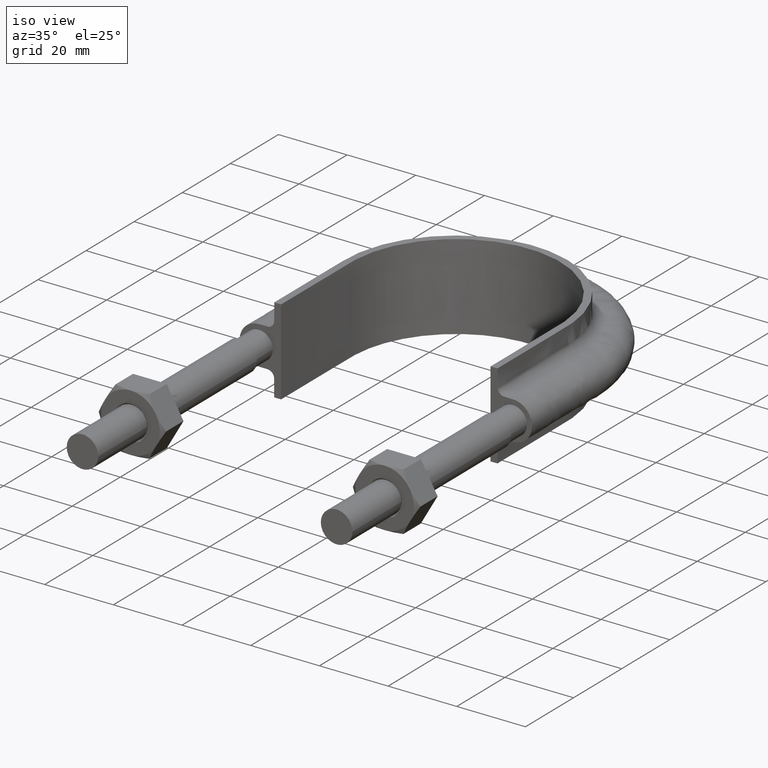
[diagram: clean part render]
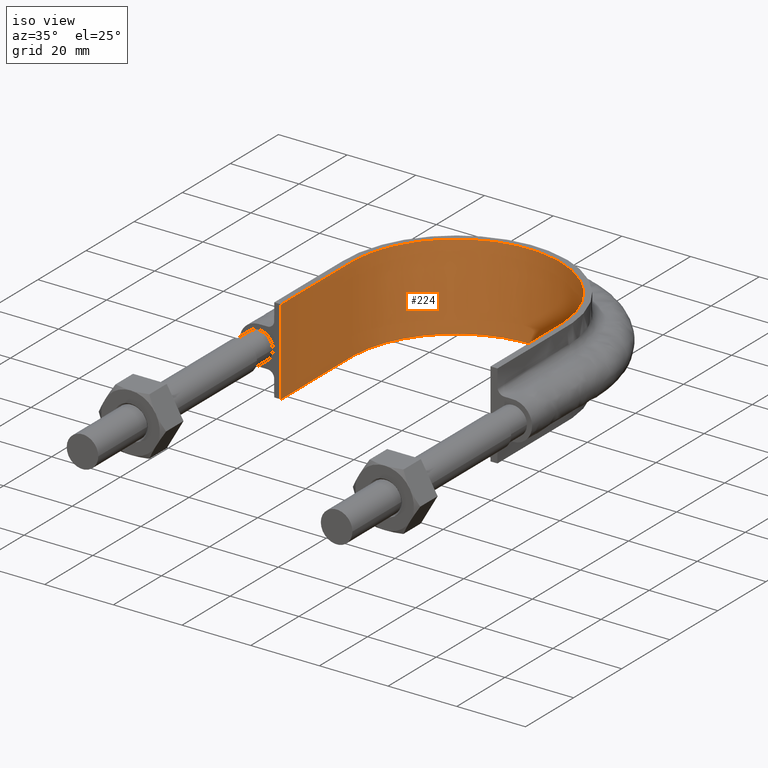
[diagram: same view with one face highlighted and labeled with its STEP entity id]
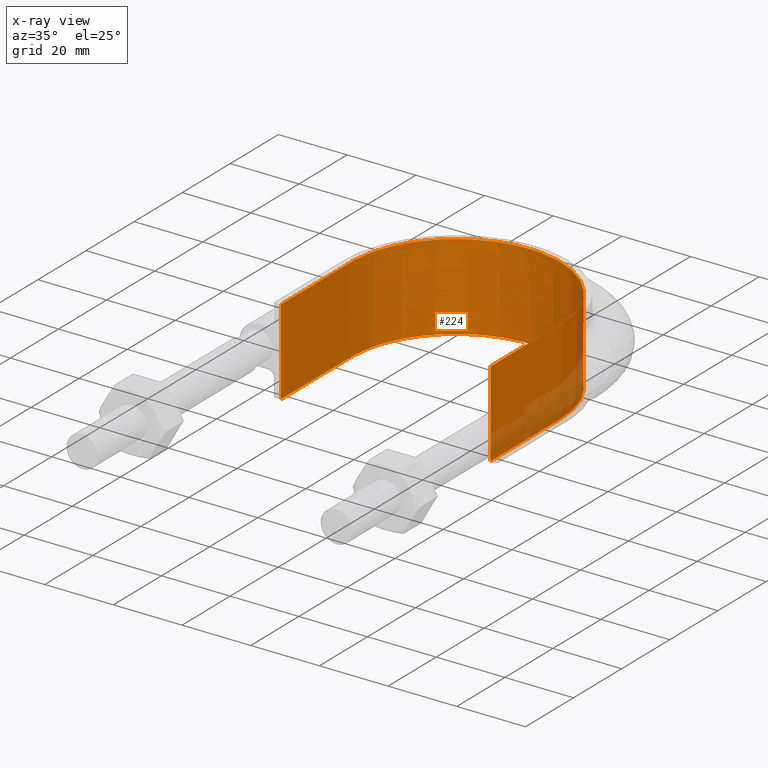
[diagram: x-ray of the same camera — body ghosted, the highlighted face saturated]
A machine part, iso view. The second image highlights one B-rep face of the part: STEP entity #224.
The next image is the same camera in x-ray: the body ghosted, the highlighted face saturated — about 8% of this face is hidden behind the body in this view.
In plain terms, the highlighted face is a SurfaceOfExtrusion surface.
Its self-contained STEP definition (entity closure, byte-faithful):
#224 = ADVANCED_FACE( '', ( #308 ), #309, .T. );
#308 = FACE_OUTER_BOUND( '', #1006, .T. );
#309 = SURFACE_OF_LINEAR_EXTRUSION( '', #1007, #1008 );
#1006 = EDGE_LOOP( '', ( #1499, #1500, #1501, #1502 ) );
#1007 = B_SPLINE_CURVE_WITH_KNOTS( '', 3, ( #1503, #1504, #1505, #1506, #1507, #1508, #1509, #1510, #1511, #1512, #1513, #1514, #1515, #1516, #1517, #1518, #1519 ), .UNSPECIFIED., .F., .F., ( 4, 3, 1, 1, 1, 1, 1, 1, 1, 3, 4 ), ( -7.88217522658610, -7.00000000000000, -6.50000000000000, -6.00000000000000, -5.00000000000000, -4.00000000000000, -3.00000000000000, -2.00000000000000, -1.50000000000000, -1.00000000000000, -0.117824773413899 ), .UNSPECIFIED. );
#1008 = VECTOR( '', #1520, 1000.00000000000 );
#1499 = ORIENTED_EDGE( '', *, *, #2011, .T. );
#1500 = ORIENTED_EDGE( '', *, *, #2004, .F. );
#1501 = ORIENTED_EDGE( '', *, *, #2016, .F. );
#1502 = ORIENTED_EDGE( '', *, *, #2013, .T. );
#1503 = CARTESIAN_POINT( '', ( 30.5000000000000, 73.3000000000001, 12.5000100000910 ) );
#1504 = CARTESIAN_POINT( '', ( 30.5000000000000, 83.0333333333334, 12.5000100000910 ) );
#1505 = CARTESIAN_POINT( '', ( 30.5000000000000, 92.7666666666667, 12.5000100000910 ) );
#1506 = CARTESIAN_POINT( '', ( 30.5000000000001, 102.500000000000, 12.5000100000910 ) );
#1507 = CARTESIAN_POINT( '', ( 30.5000000000001, 105.146909574859, 12.5000100000910 ) );
#1508 = CARTESIAN_POINT( '', ( 29.7847488998591, 110.486937441059, 12.5000100000910 ) );
#1509 = CARTESIAN_POINT( '', ( 25.7022707691493, 120.407294151929, 12.5000100000910 ) );
#1510 = CARTESIAN_POINT( '', ( 15.9624408097424, 130.149665427345, 12.5000100000910 ) );
#1511 = CARTESIAN_POINT( '', ( 2.68701322531081E-014, 134.425167286328, 12.5000100000910 ) );
#1512 = CARTESIAN_POINT( '', ( -15.9624408097423, 130.149665427345, 12.5000100000910 ) );
#1513 = CARTESIAN_POINT( '', ( -25.7022707691492, 120.407294151929, 12.5000100000910 ) );
#1514 = CARTESIAN_POINT( '', ( -29.7847488998590, 110.486937441059, 12.5000100000910 ) );
#1515 = CARTESIAN_POINT( '', ( -30.5000000000000, 105.146909574859, 12.5000100000910 ) );
#1516 = CARTESIAN_POINT( '', ( -30.5000000000000, 102.500000000000, 12.5000100000910 ) );
#1517 = CARTESIAN_POINT( '', ( -30.5000000000000, 92.7666666666667, 12.5000100000910 ) );
#1518 = CARTESIAN_POINT( '', ( -30.5000000000000, 83.0333333333334, 12.5000100000910 ) );
#1519 = CARTESIAN_POINT( '', ( -30.5000000000000, 73.3000000000001, 12.5000100000910 ) );
#1520 = DIRECTION( '', ( 0.000000000000000, 0.000000000000000, -1.00000000000000 ) );
#2004 = EDGE_CURVE( '', #2155, #2158, #2159, .T. );
#2011 = EDGE_CURVE( '', #2170, #2158, #2171, .F. );
#2013 = EDGE_CURVE( '', #2173, #2170, #2174, .T. );
#2016 = EDGE_CURVE( '', #2173, #2155, #2178, .T. );
#2155 = VERTEX_POINT( '', #2405 );
#2158 = VERTEX_POINT( '', #2409 );
#2159 = LINE( '', #2410, #2411 );
#2170 = VERTEX_POINT( '', #2524 );
#2171 = B_SPLINE_CURVE_WITH_KNOTS( '', 3, ( #2525, #2526, #2527, #2528, #2529, #2530, #2531, #2532, #2533, #2534, #2535, #2536, #2537, #2538, #2539, #2540, #2541 ), .UNSPECIFIED., .F., .F., ( 4, 3, 1, 1, 1, 1, 1, 1, 1, 3, 4 ), ( -7.88217522658610, -7.00000000000000, -6.50000000000000, -6.00000000000000, -5.00000000000000, -4.00000000000000, -3.00000000000000, -2.00000000000000, -1.50000000000000, -1.00000000000000, -0.117824773413899 ), .UNSPECIFIED. );
#2173 = VERTEX_POINT( '', #2544 );
#2174 = LINE( '', #2545, #2546 );
#2178 = B_SPLINE_CURVE_WITH_KNOTS( '', 3, ( #2560, #2561, #2562, #2563, #2564, #2565, #2566, #2567, #2568, #2569, #2570, #2571, #2572, #2573, #2574, #2575, #2576, #2577, #2578, #2579, #2580, #2581, #2582, #2583, #2584, #2585, #2586, #2587, #2588, #2589, #2590, #2591, #2592, #2593, #2594, #2595, #2596, #2597, #2598, #2599, #2600, #2601, #2602, #2603, #2604, #2605, #2606, #2607, #2608, #2609, #2610, #2611, #2612, #2613, #2614, #2615, #2616, #2617, #2618, #2619, #2620, #2621, #2622, #2623, #2624, #2625, #2626, #2627, #2628, #2629, #2630, #2631, #2632, #2633 ), .UNSPECIFIED., .F., .F., ( 4, 1, 2, 2, 2, 2, 2, 2, 2, 2, 2, 2, 2, 2, 2, 2, 2, 2, 2, 2, 2, 2, 2, 2, 2, 2, 2, 2, 2, 2, 2, 2, 2, 2, 2, 2, 1, 4 ), ( 0.000000000000000, 0.0192554222640497, 0.0288831333960746, 0.0300865972875777, 0.0312900611790808, 0.0336969889620870, 0.0385108445280995, 0.0433247000941120, 0.0445281639856152, 0.0457316278771183, 0.0481385556601245, 0.0529524112261371, 0.0553593390091433, 0.0577662667921496, 0.0625801223581622, 0.0649870501411685, 0.0673939779241748, 0.0722078334901873, 0.0746147612731936, 0.0770216890561999, 0.0818355446222125, 0.0842424724052188, 0.0866494001882251, 0.0914632557542377, 0.0938701835372440, 0.0962771113202503, 0.101090966886263, 0.103497894669269, 0.105904822452275, 0.110718678018288, 0.115532533584301, 0.117939461367307, 0.120346389150313, 0.122753316933320, 0.123956780824823, 0.125160244716326, 0.134787955848351, 0.154043378112401 ), .UNSPECIFIED. );
#2405 = CARTESIAN_POINT( '', ( 30.5000000000000, 73.3000000000001, 12.5000000000000 ) );
#2409 = CARTESIAN_POINT( '', ( 30.5000000000000, 73.3000000000001, -12.5000000000000 ) );
#2410 = CARTESIAN_POINT( '', ( 30.5000000000000, 73.3000000000001, 12.5000100000910 ) );
#2411 = VECTOR( '', #3059, 1000.00000000000 );
#2524 = CARTESIAN_POINT( '', ( -30.5000000000000, 73.3000000000001, -12.5000000000000 ) );
#2525 = CARTESIAN_POINT( '', ( 30.5000000000000, 73.3000000000001, -12.5000000000000 ) );
#2526 = CARTESIAN_POINT( '', ( 30.5000000000000, 83.0333333333334, -12.5000000000000 ) );
#2527 = CARTESIAN_POINT( '', ( 30.5000000000000, 92.7666666666667, -12.5000000000000 ) );
#2528 = CARTESIAN_POINT( '', ( 30.5000000000001, 102.500000000000, -12.5000000000000 ) );
#2529 = CARTESIAN_POINT( '', ( 30.5000000000001, 105.146909574859, -12.5000000000000 ) );
#2530 = CARTESIAN_POINT( '', ( 29.7847488998591, 110.486937441059, -12.5000000000000 ) );
#2531 = CARTESIAN_POINT( '', ( 25.7022707691493, 120.407294151929, -12.5000000000000 ) );
#2532 = CARTESIAN_POINT( '', ( 15.9624408097424, 130.149665427345, -12.5000000000000 ) );
#2533 = CARTESIAN_POINT( '', ( 2.68701322531081E-014, 134.425167286328, -12.5000000000000 ) );
#2534 = CARTESIAN_POINT( '', ( -15.9624408097423, 130.149665427345, -12.5000000000000 ) );
#2535 = CARTESIAN_POINT( '', ( -25.7022707691492, 120.407294151929, -12.5000000000000 ) );
#2536 = CARTESIAN_POINT( '', ( -29.7847488998590, 110.486937441059, -12.5000000000000 ) );
#2537 = CARTESIAN_POINT( '', ( -30.5000000000000, 105.146909574859, -12.5000000000000 ) );
#2538 = CARTESIAN_POINT( '', ( -30.5000000000000, 102.500000000000, -12.5000000000000 ) );
#2539 = CARTESIAN_POINT( '', ( -30.5000000000000, 92.7666666666667, -12.5000000000000 ) );
#2540 = CARTESIAN_POINT( '', ( -30.5000000000000, 83.0333333333334, -12.5000000000000 ) );
#2541 = CARTESIAN_POINT( '', ( -30.5000000000000, 73.3000000000001, -12.5000000000000 ) );
#2544 = CARTESIAN_POINT( '', ( -30.5000000000000, 73.3000000000001, 12.5000000000000 ) );
#2545 = CARTESIAN_POINT( '', ( -30.5000000000000, 73.3000000000001, 12.5000100000910 ) );
#2546 = VECTOR( '', #3062, 1000.00000000000 );
#2560 = CARTESIAN_POINT( '', ( -30.5000000000000, 73.3000000000001, 12.5000000000000 ) );
#2561 = CARTESIAN_POINT( '', ( -30.5000000000000, 79.7187970838913, 12.5000000000000 ) );
#2562 = CARTESIAN_POINT( '', ( -30.5000000000000, 89.3469927097281, 12.5000000000000 ) );
#2563 = CARTESIAN_POINT( '', ( -30.5000000000000, 98.9751883355649, 12.5000000000000 ) );
#2564 = CARTESIAN_POINT( '', ( -30.5000000000000, 102.585761695254, 12.5000000000000 ) );
#2565 = CARTESIAN_POINT( '', ( -30.4986844541323, 102.986923314969, 12.5000000000000 ) );
#2566 = CARTESIAN_POINT( '', ( -30.4745981741132, 103.789031308254, 12.5000000000000 ) );
#2567 = CARTESIAN_POINT( '', ( -30.4544492509141, 104.190003984771, 12.5000000000000 ) );
#2568 = CARTESIAN_POINT( '', ( -30.3699321862256, 105.392680532489, 12.5000000000000 ) );
#2569 = CARTESIAN_POINT( '', ( -30.2815513452004, 106.194196915207, 12.5000000000000 ) );
#2570 = CARTESIAN_POINT( '', ( -29.9199873207873, 108.597457571638, 12.5000000000000 ) );
#2571 = CARTESIAN_POINT( '', ( -29.5571198360745, 110.159787861722, 12.5000000000000 ) );
#2572 = CARTESIAN_POINT( '', ( -28.5972722047829, 113.207880590115, 12.5000000000000 ) );
#2573 = CARTESIAN_POINT( '', ( -28.0002144656635, 114.693617651351, 12.5000000000000 ) );
#2574 = CARTESIAN_POINT( '', ( -27.0992764629767, 116.500221008755, 12.5000000000000 ) );
#2575 = CARTESIAN_POINT( '', ( -26.9108830168220, 116.859704838131, 12.5000000000000 ) );
#2576 = CARTESIAN_POINT( '', ( -26.5213882779156, 117.567587786141, 12.5000000000000 ) );
#2577 = CARTESIAN_POINT( '', ( -26.3200606712639, 117.916474396834, 12.5000000000000 ) );
#2578 = CARTESIAN_POINT( '', ( -25.6966622493176, 118.948219384474, 12.5000000000000 ) );
#2579 = CARTESIAN_POINT( '', ( -25.2552822010553, 119.616244628455, 12.5000000000000 ) );
#2580 = CARTESIAN_POINT( '', ( -23.8563980365694, 121.562902855286, 12.5000000000000 ) );
#2581 = CARTESIAN_POINT( '', ( -22.8247599514250, 122.784586967088, 12.5000000000000 ) );
#2582 = CARTESIAN_POINT( '', ( -21.1277356912023, 124.502217366142, 12.5000000000000 ) );
#2583 = CARTESIAN_POINT( '', ( -20.5344294178501, 125.057480363821, 12.5000000000000 ) );
#2584 = CARTESIAN_POINT( '', ( -19.3154400053685, 126.111482848479, 12.5000000000000 ) );
#2585 = CARTESIAN_POINT( '', ( -18.6885192790513, 126.611839840476, 12.5000000000000 ) );
#2586 = CARTESIAN_POINT( '', ( -16.7561230155804, 128.033962699371, 12.5000000000000 ) );
#2587 = CARTESIAN_POINT( '', ( -15.3990725127794, 128.876870841469, 12.5000000000000 ) );
#2588 = CARTESIAN_POINT( '', ( -13.2570671195093, 129.978502957120, 12.5000000000000 ) );
#2589 = CARTESIAN_POINT( '', ( -12.5228230069798, 130.319814017707, 12.5000000000000 ) );
#2590 = CARTESIAN_POINT( '', ( -11.0306240768060, 130.942412499717, 12.5000000000000 ) );
#2591 = CARTESIAN_POINT( '', ( -10.2767436568867, 131.222274993299, 12.5000000000000 ) );
#2592 = CARTESIAN_POINT( '', ( -7.99256638845166, 131.970812104532, 12.5000000000000 ) );
#2593 = CARTESIAN_POINT( '', ( -6.43991564048131, 132.349172113476, 12.5000000000000 ) );
#2594 = CARTESIAN_POINT( '', ( -4.06589188416628, 132.734709900453, 12.5000000000000 ) );
#2595 = CARTESIAN_POINT( '', ( -3.26699737472984, 132.832705696047, 12.5000000000000 ) );
#2596 = CARTESIAN_POINT( '', ( -1.65347310558416, 132.965123458688, 12.5000000000000 ) );
#2597 = CARTESIAN_POINT( '', ( -0.846703494355733, 132.998768451046, 12.5000000000000 ) );
#2598 = CARTESIAN_POINT( '', ( 1.55984817231918, 133.002363337310, 12.5000000000000 ) );
#2599 = CARTESIAN_POINT( '', ( 3.15187678310376, 132.876183128002, 12.5000000000000 ) );
#2600 = CARTESIAN_POINT( '', ( 5.52210746155246, 132.501305428157, 12.5000000000000 ) );
#2601 = CARTESIAN_POINT( '', ( 6.30919715953047, 132.345218975853, 12.5000000000000 ) );
#2602 = CARTESIAN_POINT( '', ( 7.87729381106992, 131.969662553274, 12.5000000000000 ) );
#2603 = CARTESIAN_POINT( '', ( 8.65917048563720, 131.749575242181, 12.5000000000000 ) );
#2604 = CARTESIAN_POINT( '', ( 10.9545464152788, 131.005259840030, 12.5000000000000 ) );
#2605 = CARTESIAN_POINT( '', ( 12.4320231471581, 130.394841390723, 12.5000000000000 ) );
#2606 = CARTESIAN_POINT( '', ( 14.5688395440172, 129.307386671407, 12.5000000000000 ) );
#2607 = CARTESIAN_POINT( '', ( 15.2677563263257, 128.915999398825, 12.5000000000000 ) );
#2608 = CARTESIAN_POINT( '', ( 16.6381409078520, 128.073822399900, 12.5000000000000 ) );
#2609 = CARTESIAN_POINT( '', ( 17.3125759005461, 127.620964775786, 12.5000000000000 ) );
#2610 = CARTESIAN_POINT( '', ( 19.2664798661708, 126.192854811404, 12.5000000000000 ) );
#2611 = CARTESIAN_POINT( '', ( 20.4798446876839, 125.148667712286, 12.5000000000000 ) );
#2612 = CARTESIAN_POINT( '', ( 22.1715309172385, 123.449889227024, 12.5000000000000 ) );
#2613 = CARTESIAN_POINT( '', ( 22.7138929749291, 122.861402400307, 12.5000000000000 ) );
#2614 = CARTESIAN_POINT( '', ( 23.7548102890672, 121.639210134757, 12.5000000000000 ) );
#2615 = CARTESIAN_POINT( '', ( 24.2544864579076, 121.003952520684, 12.5000000000000 ) );
#2616 = CARTESIAN_POINT( '', ( 25.6776288297832, 119.037581170348, 12.5000000000000 ) );
#2617 = CARTESIAN_POINT( '', ( 26.5096219006963, 117.668392928187, 12.5000000000000 ) );
#2618 = CARTESIAN_POINT( '', ( 27.9456565910456, 114.816255937661, 12.5000000000000 ) );
#2619 = CARTESIAN_POINT( '', ( 28.5509590265554, 113.333936406938, 12.5000000000000 ) );
#2620 = CARTESIAN_POINT( '', ( 29.2876344042200, 111.024979684816, 12.5000000000000 ) );
#2621 = CARTESIAN_POINT( '', ( 29.5032356740682, 110.243977307862, 12.5000000000000 ) );
#2622 = CARTESIAN_POINT( '', ( 29.8703294719088, 108.679738122459, 12.5000000000000 ) );
#2623 = CARTESIAN_POINT( '', ( 30.0228181117526, 107.893587442054, 12.5000000000000 ) );
#2624 = CARTESIAN_POINT( '', ( 30.2663038414341, 106.313305021184, 12.5000000000000 ) );
#2625 = CARTESIAN_POINT( '', ( 30.3573018810972, 105.519173403997, 12.5000000000000 ) );
#2626 = CARTESIAN_POINT( '', ( 30.4466313783281, 104.321854045247, 12.5000000000000 ) );
#2627 = CARTESIAN_POINT( '', ( 30.4685308150342, 103.921725219210, 12.5000000000000 ) );
#2628 = CARTESIAN_POINT( '', ( 30.4961990804468, 103.119373956692, 12.5000000000000 ) );
#2629 = CARTESIAN_POINT( '', ( 30.5000000000001, 102.716896102985, 12.5000000000000 ) );
#2630 = CARTESIAN_POINT( '', ( 30.5000000000001, 99.0901554875488, 12.5000000000000 ) );
#2631 = CARTESIAN_POINT( '', ( 30.5000000000000, 89.4188471797180, 12.5000000000000 ) );
#2632 = CARTESIAN_POINT( '', ( 30.5000000000000, 79.7475388718872, 12.5000000000000 ) );
#2633 = CARTESIAN_POINT( '', ( 30.5000000000000, 73.3000000000001, 12.5000000000000 ) );
#3059 = DIRECTION( '', ( 0.000000000000000, 0.000000000000000, -1.00000000000000 ) );
#3062 = DIRECTION( '', ( 0.000000000000000, 0.000000000000000, -1.00000000000000 ) );